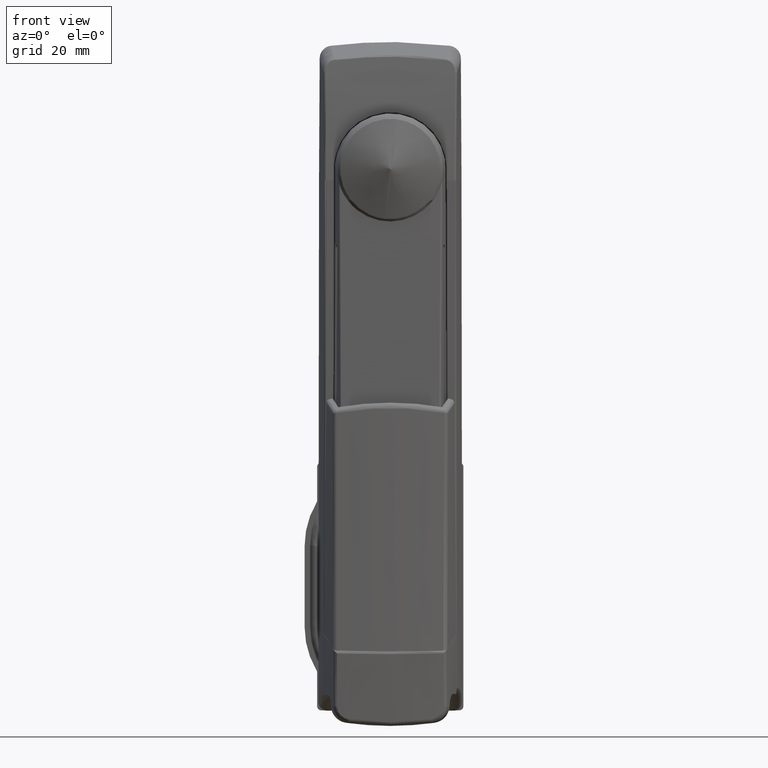
[diagram: clean part render]
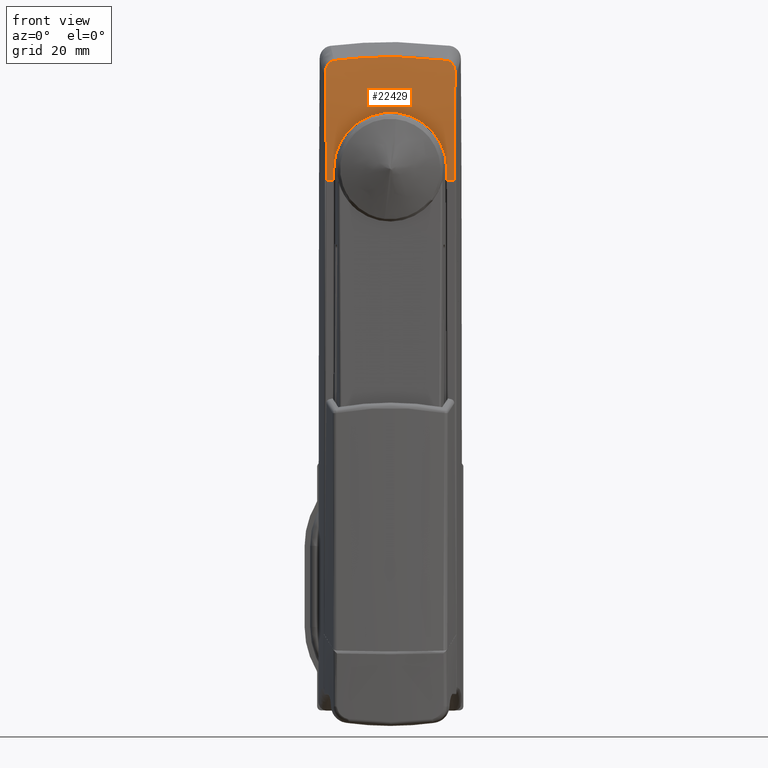
[diagram: same view with one face highlighted and labeled with its STEP entity id]
A machine part, front view. The second image highlights one B-rep face of the part: STEP entity #22429.
In plain terms, the highlighted face is a freeform B-spline surface patch.
Its self-contained STEP definition (entity closure, byte-faithful):
#16102=CARTESIAN_POINT('',(-12.441076893168200,-13.500000000000000,-2.517986E-013));
#16103=VERTEX_POINT('',#16102);
#16104=CARTESIAN_POINT('',(-12.604473546541300,-13.499300596486400,-2.741120213272555));
#16105=VERTEX_POINT('',#16104);
#16106=CARTESIAN_POINT('',(-12.441076893168200,-13.500000000000000,-2.517986E-013));
#16107=CARTESIAN_POINT('',(-12.496062418305049,-13.499600391658721,-0.913675699919689));
#16108=CARTESIAN_POINT('',(-12.550267995340629,-13.499434582657599,-1.827397951766694));
#16109=CARTESIAN_POINT('',(-12.604473546541300,-13.499300596486400,-2.741120213272555));
#16110=QUASI_UNIFORM_CURVE('',3,(#16106,#16107,#16108,#16109),.UNSPECIFIED.,.F.,.U.);
#16111=EDGE_CURVE('',#16103,#16105,#16110,.T.);
#16166=CARTESIAN_POINT('',(-12.441785726196020,13.499994861165360,-0.011779155682424));
#16167=VERTEX_POINT('',#16166);
#16168=CARTESIAN_POINT('',(-12.441076893168200,-13.500000000000000,-2.517986E-013));
#16169=CARTESIAN_POINT('',(-12.414252144722440,-13.500000000000011,0.445737687548453));
#16170=CARTESIAN_POINT('',(-12.387466372577190,-13.477981251342619,0.887720867682708));
#16171=CARTESIAN_POINT('',(-12.333803033641800,-13.391445507905210,1.764430264778949));
#16172=CARTESIAN_POINT('',(-12.306925510421090,-13.326924183553119,2.199155745726576));
#16173=CARTESIAN_POINT('',(-12.252938259727150,-13.155649267866769,3.061386373689502));
#16174=CARTESIAN_POINT('',(-12.225828475865200,-13.048897323626690,3.488891798224023));
#16175=CARTESIAN_POINT('',(-12.191726640621869,-12.888470168202920,4.018655519229677));
#16176=CARTESIAN_POINT('',(-12.184895618329460,-12.855032269994711,4.124376835188018));
#16177=CARTESIAN_POINT('',(-12.171210836618140,-12.785423876305771,4.335351801691670));
#16178=CARTESIAN_POINT('',(-12.164348582782759,-12.749206398792881,4.440735209422015));
#16179=CARTESIAN_POINT('',(-12.143789221727401,-12.636755489018860,4.755205853339946));
#16180=CARTESIAN_POINT('',(-12.130150198148559,-12.556909809155529,4.962147987044618));
#16181=CARTESIAN_POINT('',(-12.089422544274839,-12.303035813624030,5.575024320222656));
#16182=CARTESIAN_POINT('',(-12.035619737726730,-11.926373351094760,6.371030094525832));
#16183=CARTESIAN_POINT('',(-11.982796827669761,-11.474821152400320,7.125507671422891));
#16184=CARTESIAN_POINT('',(-11.943592080778631,-11.107795524635760,7.675641575572165));
#16185=CARTESIAN_POINT('',(-11.930593128195749,-10.980718464505260,7.856394275046117));
#16186=CARTESIAN_POINT('',(-11.911209492823019,-10.782886788211281,8.123523235828444));
#16187=CARTESIAN_POINT('',(-11.904767450880071,-10.715739648572120,8.211899229285896));
#16188=CARTESIAN_POINT('',(-11.891923983209940,-10.579012909516820,8.387302965089747));
#16189=CARTESIAN_POINT('',(-11.885514550365279,-10.509342078223220,8.474438445230355));
#16190=CARTESIAN_POINT('',(-11.853732871074630,-10.156600395826739,8.904578286773209));
#16191=CARTESIAN_POINT('',(-11.829075599020509,-9.859630427373491,9.232095379348401));
#16192=CARTESIAN_POINT('',(-11.781405591018579,-9.237055632552394,9.854983536206815));
#16193=CARTESIAN_POINT('',(-11.758392966244440,-8.911448423107171,10.150351923204401));
#16194=CARTESIAN_POINT('',(-11.714200205685110,-8.231662354058360,10.709028529767620));
#16195=CARTESIAN_POINT('',(-11.693019843875151,-7.877485156696547,10.972338605241159));
#16196=CARTESIAN_POINT('',(-11.667857399494009,-7.416426046130428,11.280910263855329));
#16197=CARTESIAN_POINT('',(-11.662890771010931,-7.323295191857604,11.341593890238981));
#16198=CARTESIAN_POINT('',(-11.653094305644560,-7.135174450511948,11.460876493486539));
#16199=CARTESIAN_POINT('',(-11.648264467261210,-7.040175856653471,11.519474770056860));
#16200=CARTESIAN_POINT('',(-11.634066938907880,-6.753991320983737,11.691154841092841));
#16201=CARTESIAN_POINT('',(-11.624963107805851,-6.561088898465243,11.800466065578410));
#16202=CARTESIAN_POINT('',(-11.598756971722430,-5.976159698507789,12.113259794607600));
#16203=CARTESIAN_POINT('',(-11.566759260552990,-5.179691809514877,12.490016894328241));
#16204=CARTESIAN_POINT('',(-11.540978909739319,-4.350590750346052,12.787402874228629));
#16205=CARTESIAN_POINT('',(-11.524146069242910,-3.716356621535458,12.980274322901510));
#16206=CARTESIAN_POINT('',(-11.518952685101249,-3.502873520863567,13.039527859132940));
#16207=CARTESIAN_POINT('',(-11.509435868369991,-3.071688990839381,13.147780665794031));
#16208=CARTESIAN_POINT('',(-11.505104482270291,-2.853440414598430,13.196869518427221));
#16209=CARTESIAN_POINT('',(-11.493582405592910,-2.198906821494902,13.327143652508990));
#16210=CARTESIAN_POINT('',(-11.487821089226321,-1.761425580655634,13.391848004033580));
#16211=CARTESIAN_POINT('',(-11.480120734162760,-0.884275104947150,13.478214665826370));
#16212=CARTESIAN_POINT('',(-11.478181844318421,-0.444605720709777,13.499874027802010));
#16213=CARTESIAN_POINT('',(-11.478159418465800,0.436922492519624,13.500124879012850));
#16214=CARTESIAN_POINT('',(-11.480075705780440,0.878781162329847,13.478719508647590));
#16215=CARTESIAN_POINT('',(-11.484932831433079,1.432513627495197,13.424242555998999));
#16216=CARTESIAN_POINT('',(-11.486028937713421,1.543459853847605,13.411941487358410));
#16217=CARTESIAN_POINT('',(-11.488462478148801,1.764873197774957,13.384605536830010));
#16218=CARTESIAN_POINT('',(-11.492468627647010,2.095798290109252,13.339569457998129));
#16219=CARTESIAN_POINT('',(-11.497523685494389,2.423182128504444,13.282583272837041));
#16220=CARTESIAN_POINT('',(-11.508988659280851,3.073309365635537,13.152949846103461));
#16221=CARTESIAN_POINT('',(-11.527884675727369,3.927793048614036,12.938416522241280));
#16222=CARTESIAN_POINT('',(-11.553625846099850,4.757883489473850,12.641534228385710));
#16223=CARTESIAN_POINT('',(-11.575401577124859,5.371155697932156,12.387479453273970));
#16224=CARTESIAN_POINT('',(-11.583072235436420,5.574027726099676,12.297552968636380));
#16225=CARTESIAN_POINT('',(-11.595188429240769,5.875962834881095,12.154647641541590));
#16226=CARTESIAN_POINT('',(-11.599333245401320,5.976308412841293,12.105623963519911));
#16227=CARTESIAN_POINT('',(-11.607779369113100,6.175139502458459,12.005417357040210));
#16228=CARTESIAN_POINT('',(-11.612085037108439,6.273739450039710,11.954183269236010));
#16229=CARTESIAN_POINT('',(-11.634013275017310,6.762705644385799,11.692419831277791));
#16230=CARTESIAN_POINT('',(-11.652832340215079,7.141001322415601,11.465153151335400));
#16231=CARTESIAN_POINT('',(-11.692740318829300,7.872478733228609,10.975778572164280));
#16232=CARTESIAN_POINT('',(-11.713829438294150,8.225659198101274,10.713668921278691));
#16233=CARTESIAN_POINT('',(-11.758072079991610,8.906807708047539,10.154454561912511));
#16234=CARTESIAN_POINT('',(-11.781225464985321,9.234778054755710,9.857353052236038));
#16235=CARTESIAN_POINT('',(-11.811376248289790,9.628456313169689,9.463362904258547));
#16236=CARTESIAN_POINT('',(-11.817457275980530,9.706244272720840,9.383558334592900));
#16237=CARTESIAN_POINT('',(-11.829673484373769,9.859375969274611,9.222529501005912));
#16238=CARTESIAN_POINT('',(-11.848098751003750,10.085663814261880,8.978599561839989));
#16239=CARTESIAN_POINT('',(-11.866811652959781,10.301834277159500,8.727586899909579));
#16240=CARTESIAN_POINT('',(-11.904587898517731,10.720885507383491,8.216256094822064));
#16241=CARTESIAN_POINT('',(-11.930236919169451,10.982564756285059,7.862983426025016));
#16242=CARTESIAN_POINT('',(-11.982348817039981,11.470827024866839,7.131855603524474));
#16243=CARTESIAN_POINT('',(-12.008811709150020,11.697411113578170,6.754001201450973));
#16244=CARTESIAN_POINT('',(-12.049087307138500,12.010409838658230,6.168390815664765));
#16245=CARTESIAN_POINT('',(-12.062619102681531,12.110318787578260,5.969908582333026));
#16246=CARTESIAN_POINT('',(-12.089842506512420,12.300702187714760,5.567077806833104));
#16247=CARTESIAN_POINT('',(-12.103438561285969,12.390515581322660,5.364145627205898));
#16248=CARTESIAN_POINT('',(-12.144183727770841,12.644158483120320,4.750894123975366));
#16249=CARTESIAN_POINT('',(-12.171288394276679,12.792228214941810,4.336130312759088));
#16250=CARTESIAN_POINT('',(-12.225438165321920,13.047153711042400,3.494983380906753));
#16251=CARTESIAN_POINT('',(-12.252483346048241,13.154008284917630,3.068599929658487));
#16252=CARTESIAN_POINT('',(-12.293084300569490,13.283109660842261,2.420239163808920));
#16253=CARTESIAN_POINT('',(-12.306623830703771,13.320937542342190,2.202652083566240));
#16254=CARTESIAN_POINT('',(-12.326954845641280,13.369751060183660,1.874038390954927));
#16255=CARTESIAN_POINT('',(-12.333735492997810,13.384700232474550,1.764128142465748));
#16256=CARTESIAN_POINT('',(-12.347306497835890,13.411926982491281,1.543555322159270));
#16257=CARTESIAN_POINT('',(-12.354103086026401,13.424213853387300,1.432790800139735));
#16258=CARTESIAN_POINT('',(-12.388027086102280,13.478749706204869,0.878532465269332));
#16259=CARTESIAN_POINT('',(-12.414964257310411,13.500383780771280,0.433958452592675));
#16260=CARTESIAN_POINT('',(-12.441785726191799,13.499994861165360,-0.011779155682563));
#16261=B_SPLINE_CURVE_WITH_KNOTS('',3,(#16168,#16169,#16170,#16171,#16172,#16173,#16174,#16175,#16176,#16177,#16178,#16179,#16180,#16181,#16182,#16183,#16184,#16185,#16186,#16187,#16188,#16189,#16190,#16191,#16192,#16193,#16194,#16195,#16196,#16197,#16198,#16199,#16200,#16201,#16202,#16203,#16204,#16205,#16206,#16207,#16208,#16209,#16210,#16211,#16212,#16213,#16214,#16215,#16216,#16217,#16218,#16219,#16220,#16221,#16222,#16223,#16224,#16225,#16226,#16227,#16228,#16229,#16230,#16231,#16232,#16233,#16234,#16235,#16236,#16237,#16238,#16239,#16240,#16241,#16242,#16243,#16244,#16245,#16246,#16247,#16248,#16249,#16250,#16251,#16252,#16253,#16254,#16255,#16256,#16257,#16258,#16259,#16260),.UNSPECIFIED.,.F.,.U.,(4,2,2,2,2,2,2,1,2,2,2,2,2,2,2,2,2,2,1,2,2,2,2,2,2,2,1,2,1,2,2,2,2,2,2,2,2,1,2,2,2,2,2,2,2,2,2,2,4),(0.0,0.031250000000000,0.062500000000000,0.093750000000000,0.101562500000000,0.109375000000000,0.125000000000000,0.156250000000000,0.187500000000000,0.203125000000000,0.210937500000000,0.218750000000000,0.250000000000000,0.281250000000000,0.312500000000000,0.320312500000000,0.328125000000000,0.343750000000000,0.375000000000000,0.406250000000000,0.421875000000000,0.437499999999999,0.468749999999999,0.499999999999999,0.531249999999999,0.539062499999999,0.546874999999999,0.562499999999999,0.593749999999999,0.624999999999999,0.640624999999999,0.648437499999999,0.656249999999999,0.687499999999999,0.718749999999998,0.749999999999998,0.757812499999998,0.765624999999998,0.781249999999998,0.812499999999999,0.843749999999999,0.859374999999999,0.874999999999999,0.906249999999999,0.937500000000000,0.953125000000000,0.960937500000000,0.968750000000000,1.0),.UNSPECIFIED.);
#16262=EDGE_CURVE('',#16103,#16167,#16261,.T.);
#16292=CARTESIAN_POINT('',(-12.604473546544220,13.499300596486400,-2.741120213272550));
#16293=VERTEX_POINT('',#16292);
#16294=CARTESIAN_POINT('',(-12.604473546544220,13.499300596486400,-2.741120213272550));
#16295=CARTESIAN_POINT('',(-12.550500935616601,13.499434006872010,-1.831324536929526));
#16296=CARTESIAN_POINT('',(-12.496528299406620,13.499598967070799,-0.921528870118750));
#16297=CARTESIAN_POINT('',(-12.441785726191799,13.499994861165360,-0.011779155682567));
#16298=QUASI_UNIFORM_CURVE('',3,(#16294,#16295,#16296,#16297),.UNSPECIFIED.,.F.,.U.);
#16299=EDGE_CURVE('',#16293,#16167,#16298,.T.);
#16747=CARTESIAN_POINT('',(-10.417136814291799,-15.503356224841900,23.088987094582549));
#16748=VERTEX_POINT('',#16747);
#16762=CARTESIAN_POINT('',(-12.604473546541300,-15.310058754993280,-2.741120213272555));
#16763=VERTEX_POINT('',#16762);
#16764=CARTESIAN_POINT('',(-12.604473546541300,-15.310058754993280,-2.741120213272555));
#16765=CARTESIAN_POINT('',(-12.348544517713250,-15.321833988952170,1.572977620361825));
#16766=CARTESIAN_POINT('',(-12.092543342613290,-15.333546171655620,5.887070754894667));
#16767=CARTESIAN_POINT('',(-11.585845085509259,-15.374315727719191,12.349623906542901));
#16768=CARTESIAN_POINT('',(-11.396470550018121,-15.391771147511450,14.502678259580360));
#16769=CARTESIAN_POINT('',(-10.957104753951549,-15.438111285098930,18.801493855034892));
#16770=CARTESIAN_POINT('',(-10.707093263011890,-15.466999861549510,20.947488058295221));
#16771=CARTESIAN_POINT('',(-10.417136814291799,-15.503356224841900,23.088987094582549));
#16772=B_SPLINE_CURVE_WITH_KNOTS('',3,(#16764,#16765,#16766,#16767,#16768,#16769,#16770,#16771),.UNSPECIFIED.,.F.,.U.,(4,2,2,4),(0.0,0.500000000000000,0.750000000000000,1.0),.UNSPECIFIED.);
#16773=EDGE_CURVE('',#16763,#16748,#16772,.T.);
#17030=CARTESIAN_POINT('',(-10.006475827347540,-13.463598780435740,25.938795160701300));
#17031=VERTEX_POINT('',#17030);
#17045=CARTESIAN_POINT('',(-10.417136814291799,-15.503356224841900,23.088987094582549));
#17046=CARTESIAN_POINT('',(-10.395452922897640,-15.506074898858270,23.249135395227441));
#17047=CARTESIAN_POINT('',(-10.373668517732620,-15.498733029071561,23.408351876220419));
#17048=CARTESIAN_POINT('',(-10.340856117206060,-15.471885559840580,23.645713058888859));
#17049=CARTESIAN_POINT('',(-10.329896160309881,-15.460286420895841,23.724588557550060));
#17050=CARTESIAN_POINT('',(-10.307935840207470,-15.431510510489030,23.881825058006090));
#17051=CARTESIAN_POINT('',(-10.296938264572240,-15.414315951530490,23.960163066730821));
#17052=CARTESIAN_POINT('',(-10.264282945576980,-15.354605376506120,24.191617087809039));
#17053=CARTESIAN_POINT('',(-10.242832226095240,-15.303882134131131,24.342107279724580));
#17054=CARTESIAN_POINT('',(-10.211260112448951,-15.209784703400230,24.561562614756021));
#17055=CARTESIAN_POINT('',(-10.200828545992250,-15.175369021767960,24.633724328865870));
#17056=CARTESIAN_POINT('',(-10.180238739613500,-15.100128718778761,24.775513973003079));
#17057=CARTESIAN_POINT('',(-10.170186058837050,-15.059693729126680,24.844415793238301));
#17058=CARTESIAN_POINT('',(-10.140805622859141,-14.929664824734850,25.044948364036820));
#17059=CARTESIAN_POINT('',(-10.122244800284120,-14.831446405557150,25.170476313837732));
#17060=CARTESIAN_POINT('',(-10.096300115388090,-14.664244574793999,25.344724025922361));
#17061=CARTESIAN_POINT('',(-10.088067394413761,-14.605768632018171,25.399798300663608));
#17062=CARTESIAN_POINT('',(-10.072583541832140,-14.483966049605201,25.503057147347050));
#17063=CARTESIAN_POINT('',(-10.065314178428020,-14.420524697851620,25.551364066493839));
#17064=CARTESIAN_POINT('',(-10.051784016326121,-14.288332549910701,25.641036055306170));
#17065=CARTESIAN_POINT('',(-10.045522893257051,-14.219583335465900,25.682403189431390));
#17066=CARTESIAN_POINT('',(-10.034105103379980,-14.076375124450470,25.757675168950090));
#17067=CARTESIAN_POINT('',(-10.029048064547951,-14.003132746495220,25.790923974404780));
#17068=CARTESIAN_POINT('',(-10.015893402989519,-13.779368369212911,25.877277371018319));
#17069=CARTESIAN_POINT('',(-10.009765352074110,-13.624496862799470,25.917310796196301));
#17070=CARTESIAN_POINT('',(-10.006475827347520,-13.463598780435740,25.938795160701300));
#17071=B_SPLINE_CURVE_WITH_KNOTS('',3,(#17045,#17046,#17047,#17048,#17049,#17050,#17051,#17052,#17053,#17054,#17055,#17056,#17057,#17058,#17059,#17060,#17061,#17062,#17063,#17064,#17065,#17066,#17067,#17068,#17069,#17070),.UNSPECIFIED.,.F.,.U.,(4,2,2,2,2,2,2,2,2,2,2,2,4),(0.0,0.124999999999998,0.187499999999997,0.249999999999996,0.374999999999994,0.437499999999995,0.499999999999995,0.624999999999996,0.687499999999997,0.749999999999997,0.812499999999997,0.874999999999998,1.0),.UNSPECIFIED.);
#17072=EDGE_CURVE('',#16748,#17031,#17071,.T.);
#17384=CARTESIAN_POINT('',(-10.006475826175301,13.463598723099359,25.938795168357299));
#17385=VERTEX_POINT('',#17384);
#17399=CARTESIAN_POINT('',(-10.006475827347540,-13.463598780435740,25.938795160701300));
#17400=CARTESIAN_POINT('',(-9.960806492308553,-11.229808478995670,26.237068231199132));
#17401=CARTESIAN_POINT('',(-9.925708758808108,-8.990909350626337,26.460899215403991));
#17402=CARTESIAN_POINT('',(-9.890424655944223,-5.624881558303835,26.684981170970708));
#17403=CARTESIAN_POINT('',(-9.881546653959738,-4.501592406591473,26.741062221971038));
#17404=CARTESIAN_POINT('',(-9.869687614024887,-2.252446358531091,26.815900076570490));
#17405=CARTESIAN_POINT('',(-9.866706182471329,-1.126414455465795,26.834657080539291));
#17406=CARTESIAN_POINT('',(-9.866709081689198,2.254474013018780,26.834638822070080));
#17407=CARTESIAN_POINT('',(-9.878667165394589,4.503332921698160,26.759650640243720));
#17408=CARTESIAN_POINT('',(-9.925710682928568,8.991002133226283,26.460886889149322));
#17409=CARTESIAN_POINT('',(-9.960806512936891,11.229809479070530,26.237068096374831));
#17410=CARTESIAN_POINT('',(-10.006475826175301,13.463598723099359,25.938795168357299));
#17411=B_SPLINE_CURVE_WITH_KNOTS('',3,(#17399,#17400,#17401,#17402,#17403,#17404,#17405,#17406,#17407,#17408,#17409,#17410),.UNSPECIFIED.,.F.,.U.,(4,2,2,2,2,4),(0.0,0.250000000000000,0.375000000000000,0.500000000000000,0.750000000000000,1.0),.UNSPECIFIED.);
#17412=EDGE_CURVE('',#17031,#17385,#17411,.T.);
#17656=CARTESIAN_POINT('',(-10.417136811681379,15.503356159998249,23.088987113862149));
#17657=VERTEX_POINT('',#17656);
#17671=CARTESIAN_POINT('',(-10.006475826175301,13.463598723099359,25.938795168357299));
#17672=CARTESIAN_POINT('',(-10.008126599953609,13.544341796485741,25.928013724682401));
#17673=CARTESIAN_POINT('',(-10.010525590981130,13.624477268329160,25.912339247582072));
#17674=CARTESIAN_POINT('',(-10.016672055514061,13.780494891414740,25.872115841644899));
#17675=CARTESIAN_POINT('',(-10.020422585502160,13.856707465813130,25.847546923239420));
#17676=CARTESIAN_POINT('',(-10.029215492214210,14.005673474009880,25.789823615283101));
#17677=CARTESIAN_POINT('',(-10.034258029678000,14.078426509249740,25.756668238332299));
#17678=CARTESIAN_POINT('',(-10.042769894627650,14.184984883224400,25.700551742098060));
#17679=CARTESIAN_POINT('',(-10.045765447176290,14.220075058592110,25.680780465709230));
#17680=CARTESIAN_POINT('',(-10.052072583803330,14.289391792650980,25.639093457698952));
#17681=CARTESIAN_POINT('',(-10.055385502896851,14.323613807558029,25.617168584593909));
#17682=CARTESIAN_POINT('',(-10.072498654759240,14.490323269727980,25.503741768271379));
#17683=CARTESIAN_POINT('',(-10.088093743817780,14.611649380979699,25.399850759067760));
#17684=CARTESIAN_POINT('',(-10.109606394887919,14.749920903845590,25.255354322645111));
#17685=CARTESIAN_POINT('',(-10.114010941370980,14.776899168021281,25.225716049019180));
#17686=CARTESIAN_POINT('',(-10.123018915389631,14.829520621573851,25.164979731978331));
#17687=CARTESIAN_POINT('',(-10.127634311724981,14.855226101427791,25.133800598846399));
#17688=CARTESIAN_POINT('',(-10.141678266648251,14.929857117530450,25.038728997547871));
#17689=CARTESIAN_POINT('',(-10.151278446185110,14.976199384138630,24.973480565559090));
#17690=CARTESIAN_POINT('',(-10.180703834015921,15.105851627558501,24.772600204070059));
#17691=CARTESIAN_POINT('',(-10.201148398488170,15.179854275461960,24.631869886862280));
#17692=CARTESIAN_POINT('',(-10.232843292595589,15.274004148509750,24.411528443795561));
#17693=CARTESIAN_POINT('',(-10.243629874671861,15.302665697194920,24.336186961820140));
#17694=CARTESIAN_POINT('',(-10.265241203088980,15.353791648003099,24.184481009025259));
#17695=CARTESIAN_POINT('',(-10.276063863866311,15.376289945051649,24.108135528946772));
#17696=CARTESIAN_POINT('',(-10.308563086012290,15.435268386994080,23.877728242998430));
#17697=CARTESIAN_POINT('',(-10.330269637618921,15.463283978634310,23.722303797456139));
#17698=CARTESIAN_POINT('',(-10.373698213945950,15.498696276383310,23.408127628569890));
#17699=CARTESIAN_POINT('',(-10.395420658549360,15.506078879069911,23.249373686295051));
#17700=CARTESIAN_POINT('',(-10.417136811681360,15.503356159998249,23.088987113862149));
#17701=B_SPLINE_CURVE_WITH_KNOTS('',3,(#17671,#17672,#17673,#17674,#17675,#17676,#17677,#17678,#17679,#17680,#17681,#17682,#17683,#17684,#17685,#17686,#17687,#17688,#17689,#17690,#17691,#17692,#17693,#17694,#17695,#17696,#17697,#17698,#17699,#17700),.UNSPECIFIED.,.F.,.U.,(4,2,2,2,2,2,2,2,2,2,2,2,2,2,4),(0.0,0.062500000000004,0.125000000000009,0.187500000000013,0.218750000000015,0.250000000000016,0.375000000000019,0.406250000000020,0.437500000000020,0.500000000000018,0.625000000000015,0.687500000000013,0.750000000000010,0.875000000000005,1.0),.UNSPECIFIED.);
#17702=EDGE_CURVE('',#17385,#17657,#17701,.T.);
#17995=CARTESIAN_POINT('',(-12.604473546541300,15.310058674246349,-2.741120213272550));
#17996=VERTEX_POINT('',#17995);
#18020=CARTESIAN_POINT('',(-10.417136811681379,15.503356159998249,23.088987113862149));
#18021=CARTESIAN_POINT('',(-10.997087380819890,15.430638705772710,18.805710817215449));
#18022=CARTESIAN_POINT('',(-11.416810911066291,15.387917755619981,14.505360597004090));
#18023=CARTESIAN_POINT('',(-12.092517177250009,15.333546794685599,5.887570831461082));
#18024=CARTESIAN_POINT('',(-12.348529697219981,15.321834592016330,1.573227443753069));
#18025=CARTESIAN_POINT('',(-12.604473546541300,15.310058674246349,-2.741120213272550));
#18026=B_SPLINE_CURVE_WITH_KNOTS('',3,(#18020,#18021,#18022,#18023,#18024,#18025),.UNSPECIFIED.,.F.,.U.,(4,2,4),(0.0,0.500000000000000,1.0),.UNSPECIFIED.);
#18027=EDGE_CURVE('',#17657,#17996,#18026,.T.);
#22392=CARTESIAN_POINT('',(-9.819536452421829,15.899568532011680,27.130400687891381));
#22393=CARTESIAN_POINT('',(-9.819536452421835,5.299856157045929,27.130400687891370));
#22394=CARTESIAN_POINT('',(-9.819536452421831,-5.299856217919844,27.130400687891370));
#22395=CARTESIAN_POINT('',(-9.819536452421829,-15.899568592885570,27.130400687891381));
#22396=CARTESIAN_POINT('',(-11.438933228722229,15.674135399102630,17.074917477209379));
#22397=CARTESIAN_POINT('',(-11.438933228722229,5.224711775539579,17.074917477209379));
#22398=CARTESIAN_POINT('',(-11.438933228722229,-5.224711848023616,17.074917477209379));
#22399=CARTESIAN_POINT('',(-11.438933228722229,-15.674135471586640,17.074917477209379));
#22400=CARTESIAN_POINT('',(-12.025365309590679,15.645726292248540,7.019015713055818));
#22401=CARTESIAN_POINT('',(-12.025365309590679,5.215242071869284,7.019015713055819));
#22402=CARTESIAN_POINT('',(-12.025365309590679,-5.215242148510068,7.019015713055818));
#22403=CARTESIAN_POINT('',(-12.025365309590679,-15.645726368889321,7.019015713055818));
#22404=CARTESIAN_POINT('',(-12.622019278355710,15.615367498714750,-3.036881909226608));
#22405=CARTESIAN_POINT('',(-12.622019278355710,5.205122472614495,-3.036881909226613));
#22406=CARTESIAN_POINT('',(-12.622019278355710,-5.205122553485810,-3.036881909226613));
#22407=CARTESIAN_POINT('',(-12.622019278355710,-15.615367579586080,-3.036881909226612));
#22408=B_SPLINE_SURFACE_WITH_KNOTS('',3,3,((#22392,#22396,#22400,#22404),(#22393,#22397,#22401,#22405),(#22394,#22398,#22402,#22406),(#22395,#22399,#22403,#22407)),.UNSPECIFIED.,.F.,.F.,.U.,(4,4),(4,4),(0.0,31.799137124897278),(0.0,30.562625501604352),.UNSPECIFIED.);
#22409=CARTESIAN_POINT('',(-12.604473546541300,15.310058674246349,-2.741120213272550));
#22410=CARTESIAN_POINT('',(-12.604473546544220,13.499300596486400,-2.741120213272550));
#22411=QUASI_UNIFORM_CURVE('',1,(#22409,#22410),.UNSPECIFIED.,.F.,.U.);
#22412=EDGE_CURVE('',#17996,#16293,#22411,.T.);
#22413=ORIENTED_EDGE('',*,*,#22412,.T.);
#22414=ORIENTED_EDGE('',*,*,#16299,.T.);
#22415=ORIENTED_EDGE('',*,*,#16262,.F.);
#22416=ORIENTED_EDGE('',*,*,#16111,.T.);
#22417=CARTESIAN_POINT('',(-12.604473546541300,-13.499300596486400,-2.741120213272555));
#22418=CARTESIAN_POINT('',(-12.604473546541300,-15.310058754993280,-2.741120213272555));
#22419=QUASI_UNIFORM_CURVE('',1,(#22417,#22418),.UNSPECIFIED.,.F.,.U.);
#22420=EDGE_CURVE('',#16105,#16763,#22419,.T.);
#22421=ORIENTED_EDGE('',*,*,#22420,.T.);
#22422=ORIENTED_EDGE('',*,*,#16773,.T.);
#22423=ORIENTED_EDGE('',*,*,#17072,.T.);
#22424=ORIENTED_EDGE('',*,*,#17412,.T.);
#22425=ORIENTED_EDGE('',*,*,#17702,.T.);
#22426=ORIENTED_EDGE('',*,*,#18027,.T.);
#22427=EDGE_LOOP('',(#22413,#22414,#22415,#22416,#22421,#22422,#22423,#22424,#22425,#22426));
#22428=FACE_OUTER_BOUND('',#22427,.T.);
#22429=ADVANCED_FACE('',(#22428),#22408,.F.);